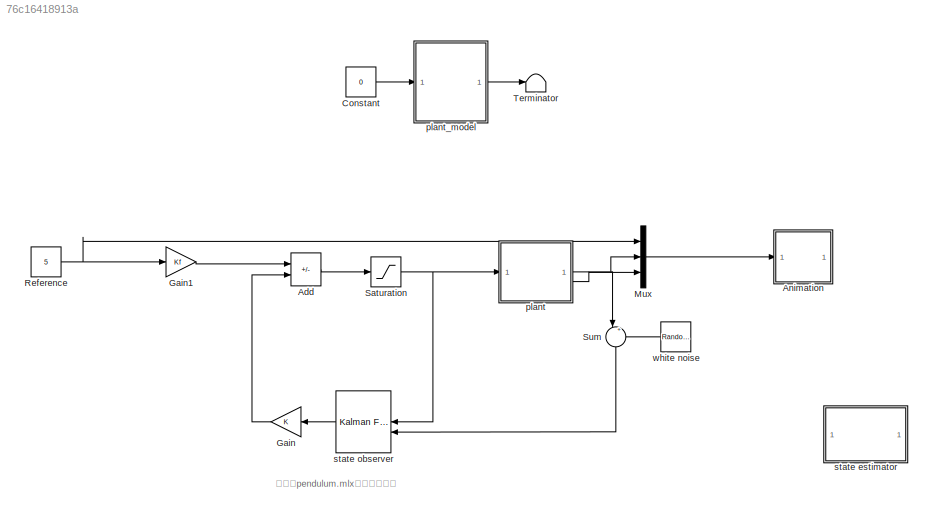
MODEL slx_76c16418913a
KIND model
CONFIG AbsTol = auto
CONFIG EnableMultiTasking = off
CONFIG FixedStep = auto
CONFIG MaxStep = auto
CONFIG MinStep = auto
CONFIG RelTol = 1e-3
CONFIG SampleTimeConstraint = Unconstrained
CONFIG SolverName = VariableStepAuto
CONFIG StartTime = 0.0
CONFIG StopTime = 10
BLOCK [Sum] Add
  IconShape = rectangular
  Inputs = +-
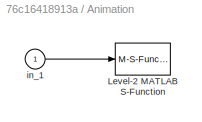
BLOCK [SubSystem] Animation
BLOCK [M-S-Function] Animation/Level-2 MATLAB S-Function
  FunctionName = pendan
  Parameters = RefBlock
BLOCK [Inport] Animation/in_1
BLOCK [Constant] Constant
  Value = 0
BLOCK [Gain] Gain
  Gain = K
  Multiplication = Matrix(K*u)
  NameLocation = top
BLOCK [Gain] Gain1
  Gain = Kf
  Multiplication = Matrix(K*u)
BLOCK [Mux] Mux
  DisplayOption = bar
  Inputs = 3
BLOCK [Constant] Reference
  Value = 5
BLOCK [Saturate] Saturation
  LowerLimit = -10
  UpperLimit = 10
BLOCK [Sum] Sum
  Inputs = |++
  NameLocation = left
BLOCK [Terminator] Terminator
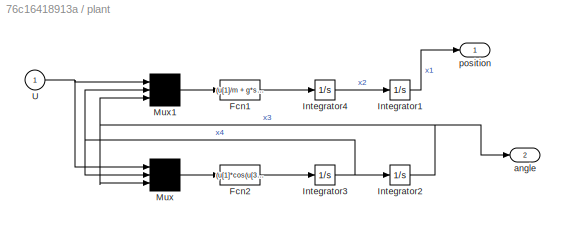
BLOCK [SubSystem] plant
BLOCK [Fcn] plant/Fcn1
  Expr = (u[1]/m + g*sin(u[3])*cos(u[3]) - l*power(u[2],2)*sin(u[3]))/(Mcart/m + power(sin(u[3]),2))
BLOCK [Fcn] plant/Fcn2
  Expr = (u[1]*cos(u[3])/m + (Mcart+m)*g*sin(u[3])/m - l*power(u[2],2)*sin(u[3])*cos(u[3]))/(l*(Mcart/m + power(sin(u[3]),2)))
BLOCK [Integrator] plant/Integrator1
  ContinuousStateAttributes = 'x'
BLOCK [Integrator] plant/Integrator2
  ContinuousStateAttributes = 'theta'
BLOCK [Integrator] plant/Integrator3
  ContinuousStateAttributes = 'omega'
BLOCK [Integrator] plant/Integrator4
  ContinuousStateAttributes = 'v'
BLOCK [Mux] plant/Mux
  Inputs = 3
BLOCK [Mux] plant/Mux1
  Inputs = 3
BLOCK [Inport] plant/U
  Unit = N
BLOCK [Outport] plant/angle
  Port = 2
BLOCK [Outport] plant/position
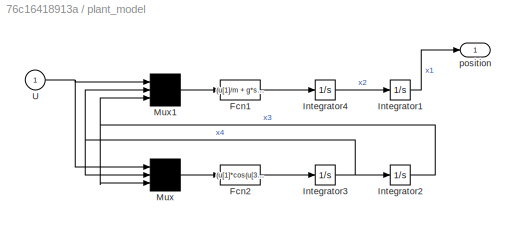
BLOCK [SubSystem] plant_model
BLOCK [Fcn] plant_model/Fcn1
  Expr = (u[1]/m + g*sin(u[3])*cos(u[3]) - l*power(u[2],2)*sin(u[3]))/(Mcart/m + power(sin(u[3]),2))
BLOCK [Fcn] plant_model/Fcn2
  Expr = (u[1]*cos(u[3])/m + (Mcart+m)*g*sin(u[3])/m - l*power(u[2],2)*sin(u[3])*cos(u[3]))/(l*(Mcart/m + power(sin(u[3]),2)))
BLOCK [Integrator] plant_model/Integrator1
  ContinuousStateAttributes = 'x'
BLOCK [Integrator] plant_model/Integrator2
  ContinuousStateAttributes = 'theta'
BLOCK [Integrator] plant_model/Integrator3
  ContinuousStateAttributes = 'omega'
BLOCK [Integrator] plant_model/Integrator4
  ContinuousStateAttributes = 'v'
BLOCK [Mux] plant_model/Mux
  Inputs = 3
BLOCK [Mux] plant_model/Mux1
  Inputs = 3
BLOCK [Inport] plant_model/U
  Unit = N
BLOCK [Outport] plant_model/position
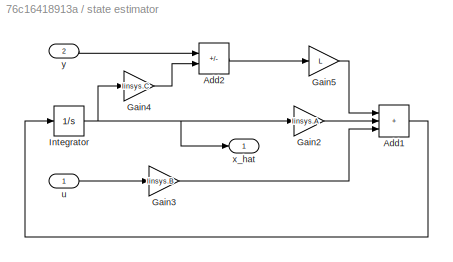
BLOCK [SubSystem] state estimator
  Commented = on
BLOCK [Sum] state estimator/Add1
  IconShape = rectangular
  Inputs = +++
BLOCK [Sum] state estimator/Add2
  IconShape = rectangular
  Inputs = +-
BLOCK [Gain] state estimator/Gain2
  Gain = linsys.A
  Multiplication = Matrix(K*u)
BLOCK [Gain] state estimator/Gain3
  Gain = linsys.B
  Multiplication = Matrix(K*u)
BLOCK [Gain] state estimator/Gain4
  Gain = linsys.C
  Multiplication = Matrix(K*u)
BLOCK [Gain] state estimator/Gain5
  Gain = L
  Multiplication = Matrix(K*u)
BLOCK [Integrator] state estimator/Integrator
BLOCK [Inport] state estimator/u
BLOCK [Outport] state estimator/x_hat
BLOCK [Inport] state estimator/y
  Port = 2
BLOCK [Reference] state observer  REF=ctrlSharedLib/Kalman Filter
  LibrarySourceBlock = cstblocks/State Estimation/Kalman Filter
  SourceBlock = ctrlSharedLib/Kalman Filter
  SourceType = ctrlKalmanFilter
BLOCK [RandomNumber] white noise
  SampleTime = 1e-3
  Variance = 1e-4
ANNOTATION (root): 请运行pendulum.mlx计算所有参数
LINE Add:1 -> Saturation:1
LINE Animation/in_1:1 -> Animation/Level-2 MATLAB S-Function:1
LINE Constant:1 -> plant_model:1
LINE Gain1:1 -> Add:1
LINE Gain:1 -> Add:2
LINE Mux:1 -> Animation:1
NET Reference:1 -> Gain1:1, Mux:1
NET Saturation:1 -> plant:1, state observer:1
LINE Sum:1 -> state observer:2
LINE plant/Fcn1:1 -> plant/Integrator4:1
LINE plant/Fcn2:1 -> plant/Integrator3:1
LINE plant/Integrator1:1 -> plant/position:1
NET plant/Integrator2:1 -> plant/Mux1:3, plant/Mux:3, plant/angle:1
NET plant/Integrator3:1 -> plant/Integrator2:1, plant/Mux1:2, plant/Mux:2
LINE plant/Integrator4:1 -> plant/Integrator1:1
LINE plant/Mux1:1 -> plant/Fcn1:1
LINE plant/Mux:1 -> plant/Fcn2:1
NET plant/U:1 -> plant/Mux1:1, plant/Mux:1
NET plant:1 -> Mux:2, Sum:1
LINE plant:2 -> Mux:3
LINE plant_model/Fcn1:1 -> plant_model/Integrator4:1
LINE plant_model/Fcn2:1 -> plant_model/Integrator3:1
LINE plant_model/Integrator1:1 -> plant_model/position:1
NET plant_model/Integrator2:1 -> plant_model/Mux1:3, plant_model/Mux:3
NET plant_model/Integrator3:1 -> plant_model/Integrator2:1, plant_model/Mux1:2, plant_model/Mux:2
LINE plant_model/Integrator4:1 -> plant_model/Integrator1:1
LINE plant_model/Mux1:1 -> plant_model/Fcn1:1
LINE plant_model/Mux:1 -> plant_model/Fcn2:1
NET plant_model/U:1 -> plant_model/Mux1:1, plant_model/Mux:1
LINE plant_model:1 -> Terminator:1
LINE state estimator/Add1:1 -> state estimator/Integrator:1
LINE state estimator/Add2:1 -> state estimator/Gain5:1
LINE state estimator/Gain2:1 -> state estimator/Add1:2
LINE state estimator/Gain3:1 -> state estimator/Add1:3
LINE state estimator/Gain4:1 -> state estimator/Add2:2
LINE state estimator/Gain5:1 -> state estimator/Add1:1
NET state estimator/Integrator:1 -> state estimator/Gain2:1, state estimator/Gain4:1, state estimator/x_hat:1
LINE state estimator/u:1 -> state estimator/Gain3:1
LINE state estimator/y:1 -> state estimator/Add2:1
LINE state observer:1 -> Gain:1
LINE white noise:1 -> Sum:2
note: NET lines group one-source signal fan-out (src -> all destinations, sorted); 1:1 wires keep LINE
